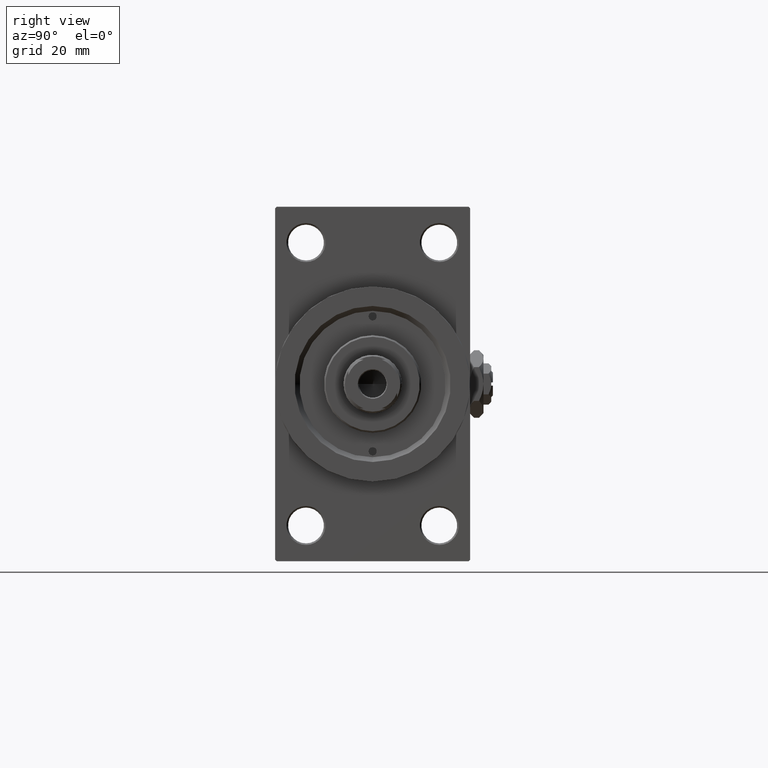
[diagram: clean part render]
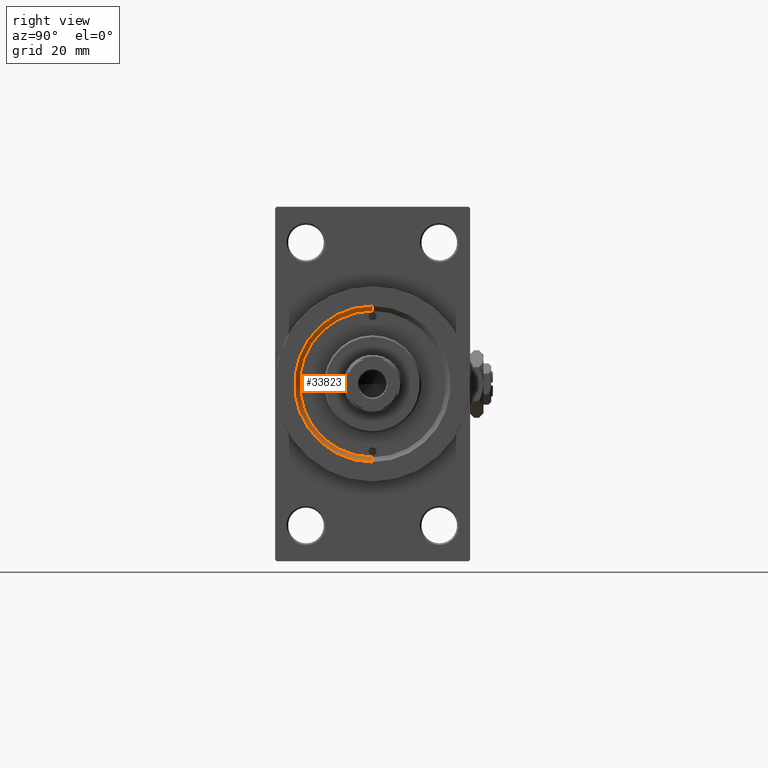
[diagram: same view with one face highlighted and labeled with its STEP entity id]
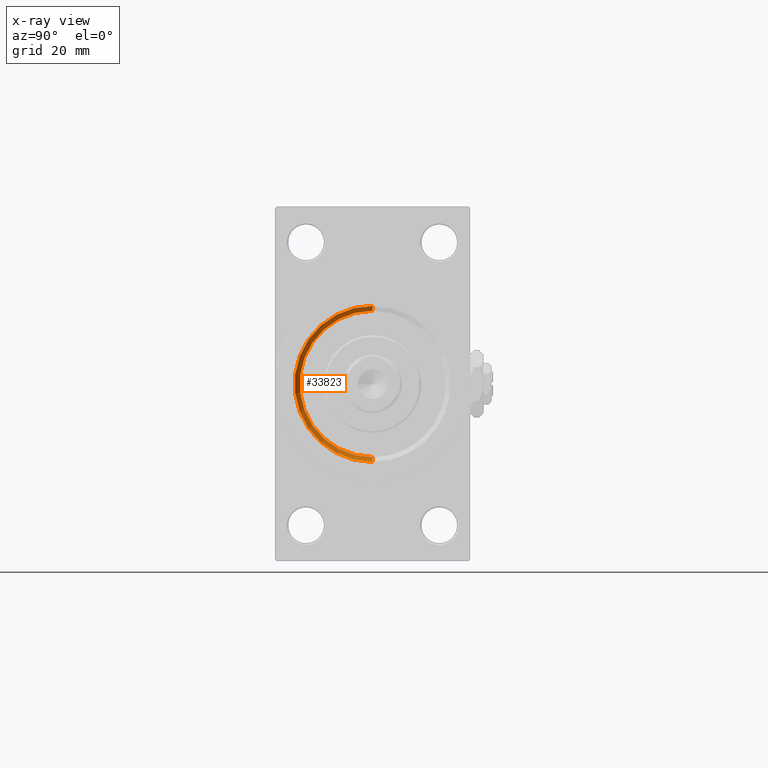
[diagram: x-ray of the same camera — body ghosted, the highlighted face saturated]
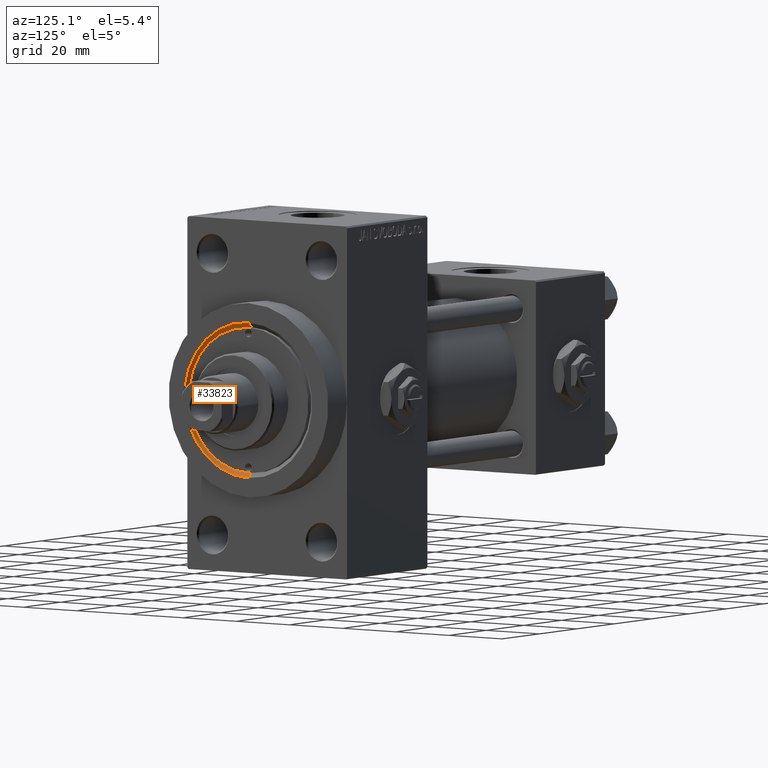
[diagram: same view with one face highlighted and labeled with its STEP entity id]
A machine part, right view. The second image highlights one B-rep face of the part: STEP entity #33823.
The next image is the same camera in x-ray: the body ghosted, the highlighted face saturated — about 0% of this face is hidden behind the body in this view.
A second angle (auxiliary view) of the same face is appended — the face is thin or edge-on in the first view.
In plain terms, the highlighted conical surface has half-angle 45 deg.
Its self-contained STEP definition (entity closure, byte-faithful):
#1828 = ORIENTED_EDGE ( 'NONE', *, *, #44201, .F. ) ;
#3165 = DIRECTION ( 'NONE',  ( 0.7071067811865491270, 8.659560562354913137E-17, 0.7071067811865459074 ) ) ;
#3989 = ORIENTED_EDGE ( 'NONE', *, *, #27963, .F. ) ;
#5418 = CARTESIAN_POINT ( 'NONE',  ( 146.5000000000000568, 2.755455298081545172E-15, 22.50000000000000355 ) ) ;
#6927 = CARTESIAN_POINT ( 'NONE',  ( 146.5000000000000568, 2.755455298081545172E-15, 22.50000000000000355 ) ) ;
#6932 = EDGE_CURVE ( 'NONE', #16524, #37299, #42244, .T. ) ;
#9193 = DIRECTION ( 'NONE',  ( 0.000000000000000000, 0.000000000000000000, -1.000000000000000000 ) ) ;
#12056 = EDGE_LOOP ( 'NONE', ( #1828, #41905, #3989, #48497 ) ) ;
#12196 = LINE ( 'NONE', #27976, #32019 ) ;
#16524 = VERTEX_POINT ( 'NONE', #5418 ) ;
#17062 = CIRCLE ( 'NONE', #34663, 22.50000000000000355 ) ;
#17152 = CARTESIAN_POINT ( 'NONE',  ( 148.0000000000000284, 0.000000000000000000, 0.000000000000000000 ) ) ;
#18614 = CARTESIAN_POINT ( 'NONE',  ( 146.5000000000000568, 0.000000000000000000, -22.50000000000000355 ) ) ;
#19308 = CARTESIAN_POINT ( 'NONE',  ( 146.5000000000000568, 0.000000000000000000, 0.000000000000000000 ) ) ;
#19929 = EDGE_CURVE ( 'NONE', #41813, #29591, #12196, .T. ) ;
#19967 = DIRECTION ( 'NONE',  ( 0.7071067811865491270, 0.000000000000000000, -0.7071067811865459074 ) ) ;
#23315 = DIRECTION ( 'NONE',  ( 0.000000000000000000, 0.000000000000000000, -1.000000000000000000 ) ) ;
#23715 = CARTESIAN_POINT ( 'NONE',  ( 148.0000000000000284, 0.000000000000000000, -23.99999999999996803 ) ) ;
#24211 = DIRECTION ( 'NONE',  ( 1.000000000000000000, 0.000000000000000000, 0.000000000000000000 ) ) ;
#25192 = FACE_OUTER_BOUND ( 'NONE', #12056, .T. ) ;
#27402 = CIRCLE ( 'NONE', #35413, 23.99999999999996803 ) ;
#27963 = EDGE_CURVE ( 'NONE', #29591, #37299, #27402, .T. ) ;
#27976 = CARTESIAN_POINT ( 'NONE',  ( 146.5000000000000568, 0.000000000000000000, -22.50000000000000355 ) ) ;
#28711 = CARTESIAN_POINT ( 'NONE',  ( 146.5000000000000568, 0.000000000000000000, 0.000000000000000000 ) ) ;
#28918 = DIRECTION ( 'NONE',  ( -1.000000000000000000, -0.000000000000000000, -0.000000000000000000 ) ) ;
#29591 = VERTEX_POINT ( 'NONE', #23715 ) ;
#31635 = CARTESIAN_POINT ( 'NONE',  ( 148.0000000000000284, 2.939152317953644345E-15, 23.99999999999996803 ) ) ;
#32019 = VECTOR ( 'NONE', #19967, 1000.000000000000000 ) ;
#33823 = ADVANCED_FACE ( 'NONE', ( #25192 ), #40347, .F. ) ;
#34663 = AXIS2_PLACEMENT_3D ( 'NONE', #19308, #39082, #23315 ) ;
#35413 = AXIS2_PLACEMENT_3D ( 'NONE', #17152, #28918, #40426 ) ;
#36314 = VECTOR ( 'NONE', #3165, 1000.000000000000000 ) ;
#37299 = VERTEX_POINT ( 'NONE', #31635 ) ;
#39082 = DIRECTION ( 'NONE',  ( 1.000000000000000000, 0.000000000000000000, 0.000000000000000000 ) ) ;
#40347 = CONICAL_SURFACE ( 'NONE', #48370, 22.50000000000000355, 0.7853981633974460586 ) ;
#40426 = DIRECTION ( 'NONE',  ( 0.000000000000000000, 0.000000000000000000, -1.000000000000000000 ) ) ;
#41813 = VERTEX_POINT ( 'NONE', #18614 ) ;
#41905 = ORIENTED_EDGE ( 'NONE', *, *, #6932, .T. ) ;
#42244 = LINE ( 'NONE', #6927, #36314 ) ;
#44201 = EDGE_CURVE ( 'NONE', #16524, #41813, #17062, .T. ) ;
#48370 = AXIS2_PLACEMENT_3D ( 'NONE', #28711, #24211, #9193 ) ;
#48497 = ORIENTED_EDGE ( 'NONE', *, *, #19929, .F. ) ;